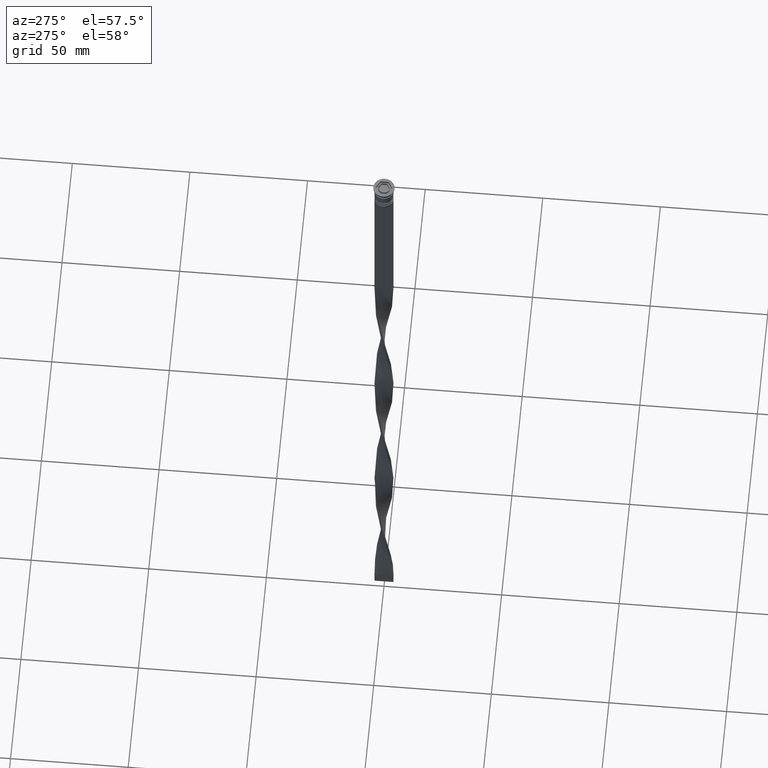
[diagram: clean part render]
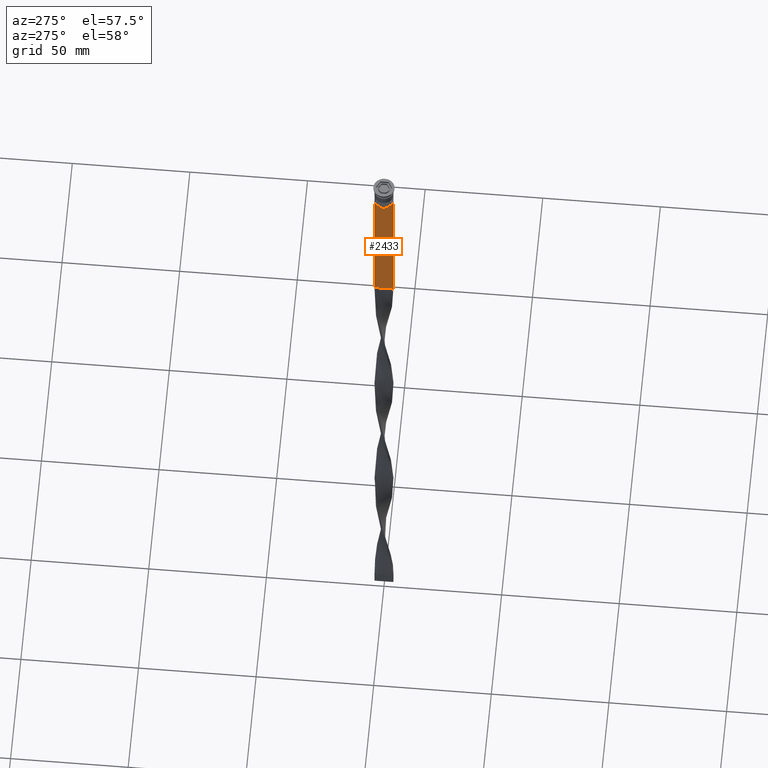
[diagram: same view with one face highlighted and labeled with its STEP entity id]
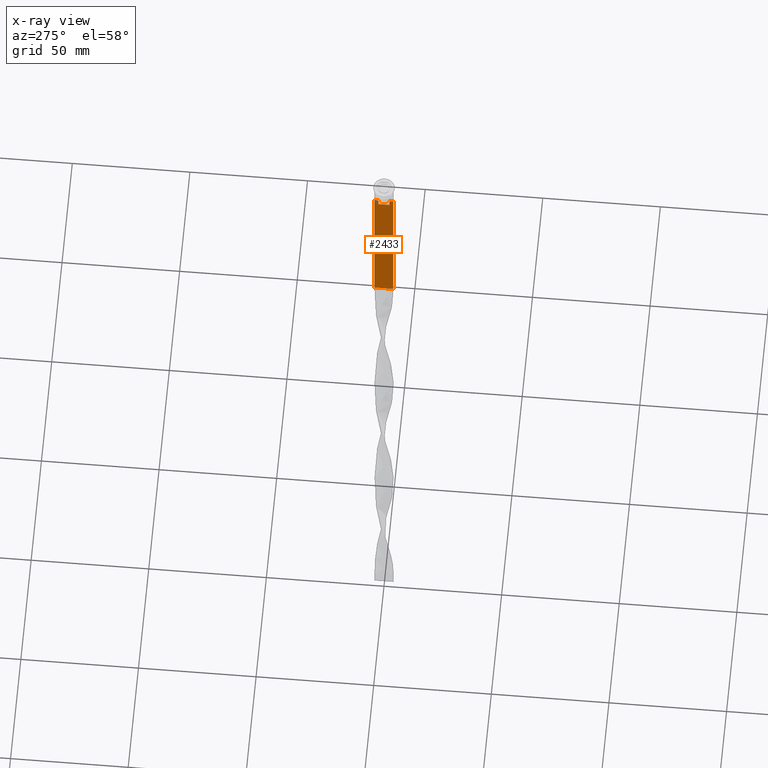
[diagram: x-ray of the same camera — body ghosted, the highlighted face saturated]
A machine part, auxiliary view. The second image highlights one B-rep face of the part: STEP entity #2433.
The next image is the same camera in x-ray: the body ghosted, the highlighted face saturated — about 0% of this face is hidden behind the body in this view.
In plain terms, the highlighted planar face has unit normal (-1, 0, 0).
Its self-contained STEP definition (entity closure, byte-faithful):
#10 = CARTESIAN_POINT ( 'NONE',  ( -0.5000000000000000000, -2.347338918861097135, -12.50000000000000000 ) ) ;
#47 = CARTESIAN_POINT ( 'NONE',  ( -0.5000000000000000000, -2.347338918861097135, -10.00000000000000000 ) ) ;
#111 = CARTESIAN_POINT ( 'NONE',  ( -0.5000000000000000000, 4.000000000000000000, -9.500000000000000000 ) ) ;
#151 = EDGE_CURVE ( 'NONE', #3150, #3987, #1301, .T. ) ;
#159 = CARTESIAN_POINT ( 'NONE',  ( -0.5000000000000000000, -2.856571371417138572, -9.500000000000000000 ) ) ;
#160 = PLANE ( 'NONE',  #2762 ) ;
#165 = CARTESIAN_POINT ( 'NONE',  ( -0.5000000000000000000, -4.000000000000000000, -78.50000000000000000 ) ) ;
#225 = EDGE_CURVE ( 'NONE', #3483, #3887, #2599, .T. ) ;
#429 = B_SPLINE_CURVE_WITH_KNOTS ( 'NONE', 3,
 ( #47, #1372, #2298, #2624 ),
 .UNSPECIFIED., .F., .F.,
 ( 4, 4 ),
 ( 0.01178336557230038641, 0.01249758354768160454 ),
 .UNSPECIFIED. ) ;
#455 = VECTOR ( 'NONE', #3579, 1000.000000000000000 ) ;
#459 = DIRECTION ( 'NONE',  ( 0.000000000000000000, -1.000000000000000000, 0.000000000000000000 ) ) ;
#465 = VECTOR ( 'NONE', #459, 1000.000000000000000 ) ;
#505 = CARTESIAN_POINT ( 'NONE',  ( -0.5000000000000000000, -3.867815921162741422, -9.500000000000000000 ) ) ;
#626 = ORIENTED_EDGE ( 'NONE', *, *, #2611, .F. ) ;
#651 = ORIENTED_EDGE ( 'NONE', *, *, #1095, .T. ) ;
#699 = DIRECTION ( 'NONE',  ( -0.000000000000000000, -0.000000000000000000, 1.000000000000000000 ) ) ;
#775 = DIRECTION ( 'NONE',  ( 0.000000000000000000, 0.000000000000000000, -1.000000000000000000 ) ) ;
#848 = EDGE_CURVE ( 'NONE', #3215, #3798, #429, .T. ) ;
#950 = CARTESIAN_POINT ( 'NONE',  ( -0.5000000000000000000, -2.347338918861097135, 0.000000000000000000 ) ) ;
#979 = ORIENTED_EDGE ( 'NONE', *, *, #3143, .F. ) ;
#996 = DIRECTION ( 'NONE',  ( -1.000000000000000000, 0.000000000000000000, 0.000000000000000000 ) ) ;
#1001 = CARTESIAN_POINT ( 'NONE',  ( -0.5000000000000000000, -4.000000000000000000, -9.500000000000000000 ) ) ;
#1004 = CARTESIAN_POINT ( 'NONE',  ( -0.5000000000000000000, -4.000000000000000000, -1.437742251701450202 ) ) ;
#1073 = ORIENTED_EDGE ( 'NONE', *, *, #225, .F. ) ;
#1081 = CARTESIAN_POINT ( 'NONE',  ( -0.5000000000000000000, 2.399999999999996803, -12.50000000000000000 ) ) ;
#1095 = EDGE_CURVE ( 'NONE', #1241, #3392, #3647, .T. ) ;
#1097 = CARTESIAN_POINT ( 'NONE',  ( -0.5000000000000000000, 4.000000000000000000, -1.437742251701450202 ) ) ;
#1156 = EDGE_CURVE ( 'NONE', #1855, #3392, #2104, .T. ) ;
#1241 = VERTEX_POINT ( 'NONE', #111 ) ;
#1249 = VECTOR ( 'NONE', #3610, 1000.000000000000000 ) ;
#1270 = EDGE_CURVE ( 'NONE', #3987, #1855, #3831, .T. ) ;
#1301 = LINE ( 'NONE', #3187, #1634 ) ;
#1372 = CARTESIAN_POINT ( 'NONE',  ( -0.5000000000000000000, -2.517408374291112416, -9.833662228483172285 ) ) ;
#1435 = CARTESIAN_POINT ( 'NONE',  ( -0.5000000000000000000, 2.856571371417138572, -9.500000000000000000 ) ) ;
#1472 = CARTESIAN_POINT ( 'NONE',  ( -0.5000000000000000000, -2.347338918861097135, -10.00000000000000000 ) ) ;
#1488 = CARTESIAN_POINT ( 'NONE',  ( -0.5000000000000000000, 2.347338918861097135, -10.00000000000000000 ) ) ;
#1511 = ORIENTED_EDGE ( 'NONE', *, *, #848, .F. ) ;
#1550 = ORIENTED_EDGE ( 'NONE', *, *, #2432, .F. ) ;
#1554 = CARTESIAN_POINT ( 'NONE',  ( -0.5000000000000000000, 3.867815921162741422, -9.500000000000000000 ) ) ;
#1610 = DIRECTION ( 'NONE',  ( 0.000000000000000000, -1.000000000000000000, 0.000000000000000000 ) ) ;
#1634 = VECTOR ( 'NONE', #1610, 1000.000000000000000 ) ;
#1715 = VECTOR ( 'NONE', #3049, 1000.000000000000000 ) ;
#1718 = EDGE_CURVE ( 'NONE', #2692, #3358, #3278, .T. ) ;
#1725 = FACE_OUTER_BOUND ( 'NONE', #3191, .T. ) ;
#1796 = CARTESIAN_POINT ( 'NONE',  ( -0.5000000000000000000, -4.000000000000000000, -78.50000000000000000 ) ) ;
#1816 = ORIENTED_EDGE ( 'NONE', *, *, #2032, .F. ) ;
#1837 = CARTESIAN_POINT ( 'NONE',  ( -0.5000000000000000000, 2.856571371417138572, -9.500000000000000000 ) ) ;
#1840 = VERTEX_POINT ( 'NONE', #1488 ) ;
#1855 = VERTEX_POINT ( 'NONE', #165 ) ;
#2032 = EDGE_CURVE ( 'NONE', #3887, #1840, #2876, .T. ) ;
#2043 = CARTESIAN_POINT ( 'NONE',  ( -0.5000000000000000000, 2.347338918861097135, -12.50000000000000000 ) ) ;
#2089 = LINE ( 'NONE', #4014, #1715 ) ;
#2104 = LINE ( 'NONE', #1796, #3424 ) ;
#2177 = CARTESIAN_POINT ( 'NONE',  ( -0.5000000000000000000, -4.000000000000000000, -9.500000000000000000 ) ) ;
#2208 = CARTESIAN_POINT ( 'NONE',  ( -0.5000000000000000000, 2.517407211010871393, -9.833663366238582171 ) ) ;
#2241 = VECTOR ( 'NONE', #775, 1000.000000000000000 ) ;
#2251 = DIRECTION ( 'NONE',  ( 0.000000000000000000, 0.000000000000000000, -1.000000000000000000 ) ) ;
#2298 = CARTESIAN_POINT ( 'NONE',  ( -0.5000000000000000000, -2.687095498514037839, -9.666937905752043037 ) ) ;
#2313 = VECTOR ( 'NONE', #699, 1000.000000000000000 ) ;
#2339 = CARTESIAN_POINT ( 'NONE',  ( -0.5000000000000000000, 2.347338918861097135, 0.000000000000000000 ) ) ;
#2409 = EDGE_CURVE ( 'NONE', #1840, #2692, #3920, .T. ) ;
#2432 = EDGE_CURVE ( 'NONE', #3798, #3150, #3603, .T. ) ;
#2433 = ADVANCED_FACE ( 'NONE', ( #1725 ), #160, .T. ) ;
#2501 = CARTESIAN_POINT ( 'NONE',  ( -0.5000000000000000000, 2.687094542495897631, -9.666938847453439010 ) ) ;
#2577 = ORIENTED_EDGE ( 'NONE', *, *, #1718, .F. ) ;
#2599 = LINE ( 'NONE', #1001, #455 ) ;
#2611 = EDGE_CURVE ( 'NONE', #3358, #3215, #3534, .T. ) ;
#2624 = CARTESIAN_POINT ( 'NONE',  ( -0.5000000000000000000, -2.856571371417138572, -9.500000000000000000 ) ) ;
#2658 = ORIENTED_EDGE ( 'NONE', *, *, #2409, .F. ) ;
#2692 = VERTEX_POINT ( 'NONE', #2043 ) ;
#2762 = AXIS2_PLACEMENT_3D ( 'NONE', #3485, #996, #2933 ) ;
#2773 = ORIENTED_EDGE ( 'NONE', *, *, #1270, .F. ) ;
#2775 = ORIENTED_EDGE ( 'NONE', *, *, #151, .F. ) ;
#2876 = B_SPLINE_CURVE_WITH_KNOTS ( 'NONE', 3,
 ( #1837, #2501, #2208, #3434 ),
 .UNSPECIFIED., .F., .F.,
 ( 4, 4 ),
 ( 0.004956812174141195064, 0.005670477137898153989 ),
 .UNSPECIFIED. ) ;
#2903 = VECTOR ( 'NONE', #2251, 1000.000000000000000 ) ;
#2933 = DIRECTION ( 'NONE',  ( 0.000000000000000000, 0.000000000000000000, 1.000000000000000000 ) ) ;
#2998 = ORIENTED_EDGE ( 'NONE', *, *, #1156, .F. ) ;
#3049 = DIRECTION ( 'NONE',  ( 0.000000000000000000, -1.000000000000000000, 0.000000000000000000 ) ) ;
#3061 = DIRECTION ( 'NONE',  ( 0.000000000000000000, 1.000000000000000000, 0.000000000000000000 ) ) ;
#3127 = CARTESIAN_POINT ( 'NONE',  ( -0.5000000000000000000, 4.000000000000000000, -78.50000000000000000 ) ) ;
#3143 = EDGE_CURVE ( 'NONE', #1241, #3483, #2089, .T. ) ;
#3150 = VERTEX_POINT ( 'NONE', #505 ) ;
#3187 = CARTESIAN_POINT ( 'NONE',  ( -0.5000000000000000000, -4.000000000000000000, -9.500000000000000000 ) ) ;
#3191 = EDGE_LOOP ( 'NONE', ( #1816, #1073, #979, #651, #2998, #2773, #2775, #1550, #1511, #626, #2577, #2658 ) ) ;
#3215 = VERTEX_POINT ( 'NONE', #1472 ) ;
#3278 = LINE ( 'NONE', #1081, #1249 ) ;
#3292 = CARTESIAN_POINT ( 'NONE',  ( -0.5000000000000000000, -4.000000000000000000, -9.500000000000000000 ) ) ;
#3358 = VERTEX_POINT ( 'NONE', #10 ) ;
#3392 = VERTEX_POINT ( 'NONE', #3127 ) ;
#3424 = VECTOR ( 'NONE', #3061, 1000.000000000000000 ) ;
#3434 = CARTESIAN_POINT ( 'NONE',  ( -0.5000000000000000000, 2.347338918861097135, -10.00000000000000000 ) ) ;
#3483 = VERTEX_POINT ( 'NONE', #1554 ) ;
#3485 = CARTESIAN_POINT ( 'NONE',  ( -0.5000000000000000000, -4.000000000000000000, -1.437742251701450202 ) ) ;
#3534 = LINE ( 'NONE', #950, #2313 ) ;
#3562 = VECTOR ( 'NONE', #3937, 1000.000000000000000 ) ;
#3579 = DIRECTION ( 'NONE',  ( 0.000000000000000000, -1.000000000000000000, 0.000000000000000000 ) ) ;
#3603 = LINE ( 'NONE', #3292, #465 ) ;
#3610 = DIRECTION ( 'NONE',  ( 0.000000000000000000, -1.000000000000000000, 0.000000000000000000 ) ) ;
#3647 = LINE ( 'NONE', #1097, #3562 ) ;
#3798 = VERTEX_POINT ( 'NONE', #159 ) ;
#3831 = LINE ( 'NONE', #1004, #2903 ) ;
#3887 = VERTEX_POINT ( 'NONE', #1435 ) ;
#3920 = LINE ( 'NONE', #2339, #2241 ) ;
#3937 = DIRECTION ( 'NONE',  ( 0.000000000000000000, 0.000000000000000000, -1.000000000000000000 ) ) ;
#3987 = VERTEX_POINT ( 'NONE', #2177 ) ;
#4014 = CARTESIAN_POINT ( 'NONE',  ( -0.5000000000000000000, -4.000000000000000000, -9.500000000000000000 ) ) ;